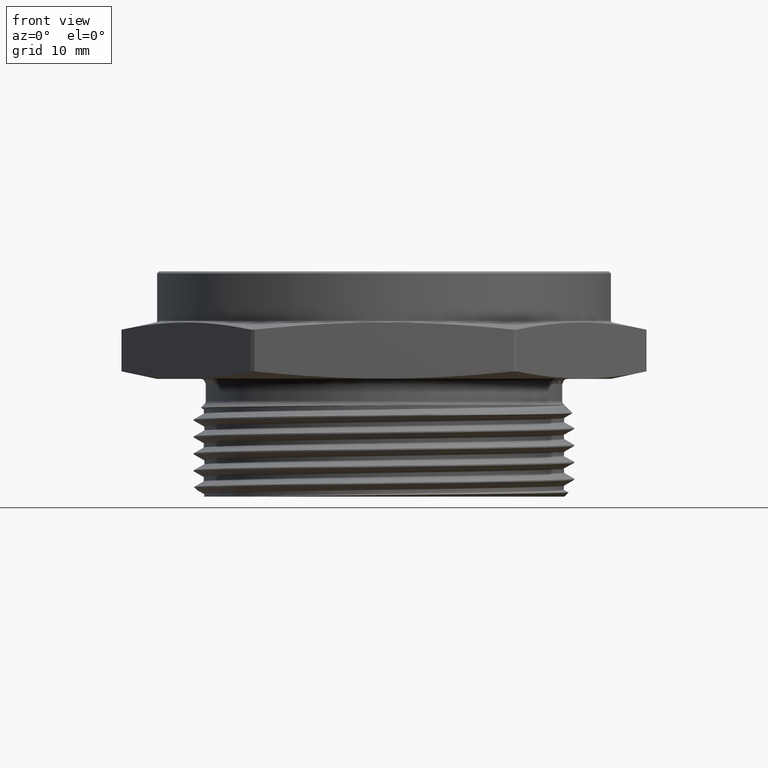
[diagram: clean part render]
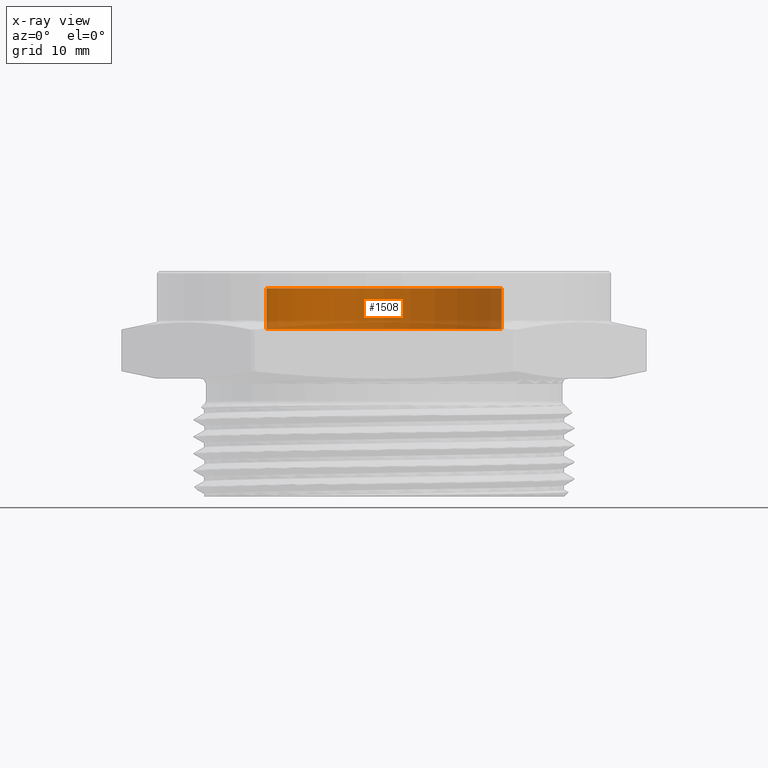
[diagram: x-ray — body ghosted, one internal face saturated and labeled with its STEP entity id]
A machine part, front view, then the same camera in x-ray: the body is ghosted and one INTERNAL B-rep face — a face not visible from any outside direction — is saturated and labeled: STEP entity #1508.
In plain terms, the highlighted cylindrical surface (partial cylindrical patch) has radius 14.732 mm, axis along (-0, -0, 1).
Its self-contained STEP definition (entity closure, byte-faithful):
#5 = VERTEX_POINT ( 'NONE', #2852 ) ;
#12 = VERTEX_POINT ( 'NONE', #2834 ) ;
#23 = VERTEX_POINT ( 'NONE', #2793 ) ;
#71 = VERTEX_POINT ( 'NONE', #2736 ) ;
#81 = CYLINDRICAL_SURFACE ( 'NONE', #718, 0.5800000000000002900 ) ;
#82 = FACE_OUTER_BOUND ( 'NONE', #181, .T. ) ;
#181 = EDGE_LOOP ( 'NONE', ( #431, #432, #433, #434 ) ) ;
#215 = CIRCLE ( 'NONE', #707, 0.5800000000000002900 ) ;
#216 = VECTOR ( 'NONE', #2041, 39.37007874015748100 ) ;
#223 = CIRCLE ( 'NONE', #708, 0.5800000000000002900 ) ;
#224 = LINE ( 'NONE', #2040, #216 ) ;
#232 = LINE ( 'NONE', #2042, #234 ) ;
#234 = VECTOR ( 'NONE', #2043, 39.37007874015748100 ) ;
#431 = ORIENTED_EDGE ( 'NONE', *, *, #619, .F. ) ;
#432 = ORIENTED_EDGE ( 'NONE', *, *, #618, .T. ) ;
#433 = ORIENTED_EDGE ( 'NONE', *, *, #620, .T. ) ;
#434 = ORIENTED_EDGE ( 'NONE', *, *, #621, .F. ) ;
#618 = EDGE_CURVE ( 'NONE', #71, #5, #224, .T. ) ;
#619 = EDGE_CURVE ( 'NONE', #71, #23, #215, .T. ) ;
#620 = EDGE_CURVE ( 'NONE', #5, #12, #223, .T. ) ;
#621 = EDGE_CURVE ( 'NONE', #23, #12, #232, .T. ) ;
#707 = AXIS2_PLACEMENT_3D ( 'NONE', #2044, #2045, #2046 ) ;
#708 = AXIS2_PLACEMENT_3D ( 'NONE', #2047, #2048, #2049 ) ;
#718 = AXIS2_PLACEMENT_3D ( 'NONE', #1403, #1404, #1402 ) ;
#1402 = DIRECTION ( 'NONE',  ( 1.000000000000000000, 0.0000000000000000000, 0.0000000000000000000 ) ) ;
#1403 = CARTESIAN_POINT ( 'NONE',  ( 0.0000000000000000000, 0.0000000000000000000, 0.2460000000000000200 ) ) ;
#1404 = DIRECTION ( 'NONE',  ( -0.0000000000000000000, -0.0000000000000000000, 1.000000000000000000 ) ) ;
#1508 = ADVANCED_FACE ( 'NONE', ( #82 ), #81, .T. ) ;
#2040 = CARTESIAN_POINT ( 'NONE',  ( -0.5800000000000002900, 7.102951435054652600E-017, 0.2460000000000000200 ) ) ;
#2041 = DIRECTION ( 'NONE',  ( -0.0000000000000000000, -0.0000000000000000000, 1.000000000000000000 ) ) ;
#2042 = CARTESIAN_POINT ( 'NONE',  ( 0.5800000000000002900, 0.0000000000000000000, 0.2460000000000000200 ) ) ;
#2043 = DIRECTION ( 'NONE',  ( -0.0000000000000000000, -0.0000000000000000000, 1.000000000000000000 ) ) ;
#2044 = CARTESIAN_POINT ( 'NONE',  ( 0.0000000000000000000, 0.0000000000000000000, 0.2460000000000000200 ) ) ;
#2045 = DIRECTION ( 'NONE',  ( 0.0000000000000000000, 0.0000000000000000000, -1.000000000000000000 ) ) ;
#2046 = DIRECTION ( 'NONE',  ( -1.000000000000000000, 0.0000000000000000000, 0.0000000000000000000 ) ) ;
#2047 = CARTESIAN_POINT ( 'NONE',  ( 0.0000000000000000000, 0.0000000000000000000, 0.4460000000000000600 ) ) ;
#2048 = DIRECTION ( 'NONE',  ( 0.0000000000000000000, 0.0000000000000000000, -1.000000000000000000 ) ) ;
#2049 = DIRECTION ( 'NONE',  ( -1.000000000000000000, 0.0000000000000000000, 0.0000000000000000000 ) ) ;
#2736 = CARTESIAN_POINT ( 'NONE',  ( -0.5800000000000002900, 7.102951435054652600E-017, 0.2460000000000000200 ) ) ;
#2793 = CARTESIAN_POINT ( 'NONE',  ( 0.5800000000000002900, 0.0000000000000000000, 0.2460000000000000200 ) ) ;
#2834 = CARTESIAN_POINT ( 'NONE',  ( 0.5800000000000002900, 0.0000000000000000000, 0.4460000000000000600 ) ) ;
#2852 = CARTESIAN_POINT ( 'NONE',  ( -0.5800000000000002900, 7.102951435054652600E-017, 0.4460000000000000600 ) ) ;